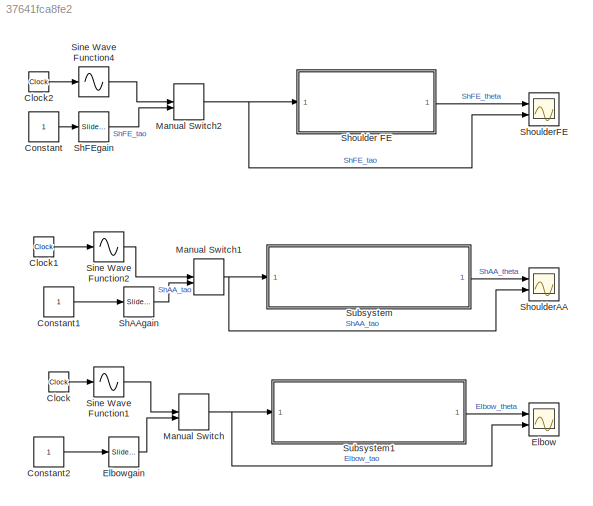
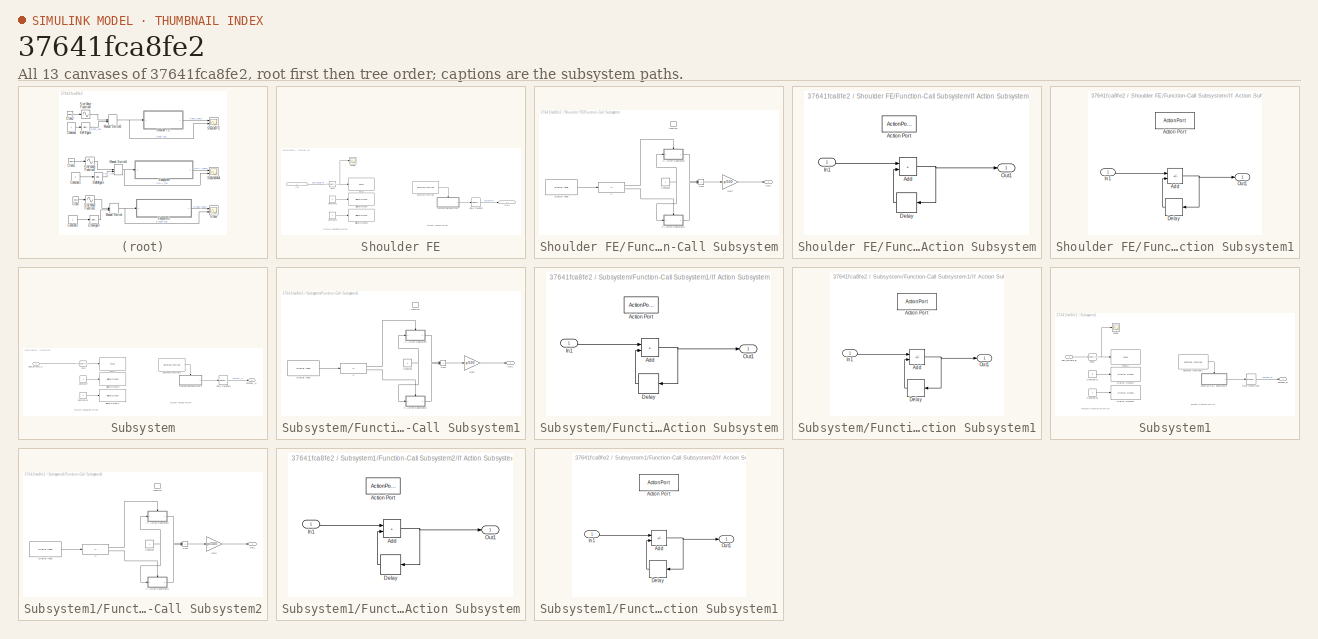
[diagram: thumbnail index - all 13 canvases of the model, root first then tree order]
MODEL slx_37641fca8fe2
KIND model
CONFIG AbsTol = auto
CONFIG EnableMultiTasking = off
CONFIG FixedStep = auto
CONFIG MaxStep = auto
CONFIG MinStep = auto
CONFIG RelTol = 1e-3
CONFIG SampleTimeConstraint = Unconstrained
CONFIG Solver = FixedStepAuto
CONFIG SolverName = FixedStepAuto
CONFIG StartTime = 0.0
CONFIG StopTime = inf
BLOCK [Clock] Clock
BLOCK [Clock] Clock1
BLOCK [Clock] Clock2
BLOCK [Constant] Constant
BLOCK [Constant] Constant1
BLOCK [Constant] Constant2
BLOCK [Scope] Elbow
  Floating = off
  NumInputPorts = 2
  Ports = [2]
  ScopeSpecificationString = Simulink.scopes.TimeScopeBlockCfg('CurrentConfiguration', extmgr.ConfigurationSet(extmgr.Configuration('Core','General UI',true),extmgr.Configuration('Core','Source UI',true),extmgr.Configuration('Sources','WiredSimulink',true,'DataLogging',true,'DataLoggingVariableName','Elbow'),extmgr.Configuration('Visuals','Time Domain',true,'SerializedDisplays',{struct('MinYLimReal','1.38466','MaxYLimReal','1...<+2009ch>
BLOCK [Reference] Elbowgain  REF=simulink/Math
Operations/Slider
Gain
  Ports = [1, 1]
  SourceBlock = simulink/Math\nOperations/Slider\nGain
  SourceProductBaseCode = SL
  SourceType = Slider Gain
BLOCK [ManualSwitch] Manual Switch
BLOCK [ManualSwitch] Manual Switch1
BLOCK [ManualSwitch] Manual Switch2
BLOCK [Reference] ShAAgain  REF=simulink/Math
Operations/Slider
Gain
  Ports = [1, 1]
  SourceBlock = simulink/Math\nOperations/Slider\nGain
  SourceProductBaseCode = SL
  SourceType = Slider Gain
BLOCK [Reference] ShFEgain  REF=simulink/Math
Operations/Slider
Gain
  Ports = [1, 1]
  SourceBlock = simulink/Math\nOperations/Slider\nGain
  SourceProductBaseCode = SL
  SourceType = Slider Gain
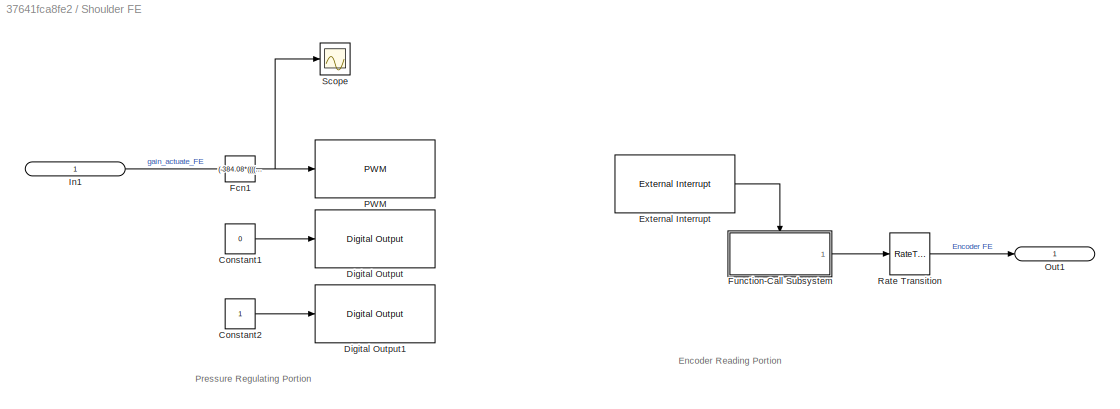
BLOCK [SubSystem] Shoulder FE
  Ports = [1, 1]
  RequestExecContextInheritance = off
BLOCK [Constant] Shoulder FE/Constant1
  SampleTime = -1
  Value = 0
BLOCK [Constant] Shoulder FE/Constant2
  SampleTime = -1
BLOCK [Reference] Shoulder FE/Digital Output  REF=arduinolib/Digital Output
  Ports = [1]
  SourceBlock = arduinolib/Digital Output
  SourceProductBaseCode = ARDUINO
  SourceType = Arduino Digital Output
BLOCK [Reference] Shoulder FE/Digital Output1  REF=arduinolib/Digital Output
  Ports = [1]
  SourceBlock = arduinolib/Digital Output
  SourceProductBaseCode = ARDUINO
  SourceType = Arduino Digital Output
BLOCK [Reference] Shoulder FE/External Interrupt  REF=arduinolib/External Interrupt
  Ports = [0, 1]
  SourceBlock = arduinolib/External Interrupt
  SourceProductBaseCode = ARDUINO
  SourceType = Arduino Interrupt Block
BLOCK [Fcn] Shoulder FE/Fcn1
  Expr = (-384.08*((((u(1)*14.5038))/90))^4 + 789.52*((((u(1)*14.5038))/90))^3 - 618.81*((((u(1)*14.5038))/90))^2 + 468.18*((((u(1)*14.5038))/90)))
BLOCK [SubSystem] Shoulder FE/Function-Call Subsystem
  Ports = [0, 1, 0, 1]
  RequestExecContextInheritance = off
  TreatAsAtomicUnit = on
BLOCK [Constant] Shoulder FE/Function-Call Subsystem/Constant
BLOCK [Reference] Shoulder FE/Function-Call Subsystem/Digital Input  REF=arduinolib/Digital Input
  Ports = [0, 1]
  SourceBlock = arduinolib/Digital Input
  SourceProductBaseCode = ARDUINO
  SourceType = Arduino Digital Input
BLOCK [Gain] Shoulder FE/Function-Call Subsystem/Gain
  Gain = p/500
BLOCK [If] Shoulder FE/Function-Call Subsystem/If
  ElseIfExpressions = u1 == 1
  IfExpression = u1 == 0
  Ports = [1, 2]
  ShowElse = off
BLOCK [SubSystem] Shoulder FE/Function-Call Subsystem/If Action Subsystem
  Ports = [1, 1, 0, 0, 0, 0, 0, 1]
  RequestExecContextInheritance = off
  TreatAsAtomicUnit = on
BLOCK [ActionPort] Shoulder FE/Function-Call Subsystem/If Action Subsystem/Action Port
BLOCK [Sum] Shoulder FE/Function-Call Subsystem/If Action Subsystem/Add
  IconShape = rectangular
  Ports = [2, 1]
BLOCK [Delay] Shoulder FE/Function-Call Subsystem/If Action Subsystem/Delay
  DelayLength = 1
  InputPortMap = u0
  Ports = [1, 1]
BLOCK [Inport] Shoulder FE/Function-Call Subsystem/If Action Subsystem/In1
BLOCK [Outport] Shoulder FE/Function-Call Subsystem/If Action Subsystem/Out1
BLOCK [SubSystem] Shoulder FE/Function-Call Subsystem/If Action Subsystem1
  Ports = [1, 1, 0, 0, 0, 0, 0, 1]
  RequestExecContextInheritance = off
  TreatAsAtomicUnit = on
BLOCK [ActionPort] Shoulder FE/Function-Call Subsystem/If Action Subsystem1/Action Port
BLOCK [Sum] Shoulder FE/Function-Call Subsystem/If Action Subsystem1/Add
  IconShape = rectangular
  Inputs = -+
  Ports = [2, 1]
BLOCK [Delay] Shoulder FE/Function-Call Subsystem/If Action Subsystem1/Delay
  DelayLength = 1
  InputPortMap = u0
  Ports = [1, 1]
BLOCK [Inport] Shoulder FE/Function-Call Subsystem/If Action Subsystem1/In1
BLOCK [Outport] Shoulder FE/Function-Call Subsystem/If Action Subsystem1/Out1
BLOCK [Outport] Shoulder FE/Function-Call Subsystem/Out1
BLOCK [Sum] Shoulder FE/Function-Call Subsystem/Sum
  IconShape = rectangular
  Ports = [2, 1]
BLOCK [TriggerPort] Shoulder FE/Function-Call Subsystem/function
  Ports = []
  StatesWhenEnabling = held
  TriggerType = function-call
  VariantControl = Variant
BLOCK [Inport] Shoulder FE/In1
  IconDisplay = Signal name
BLOCK [Outport] Shoulder FE/Out1
  IconDisplay = Signal name
BLOCK [Reference] Shoulder FE/PWM  REF=arduinolib/PWM
  Ports = [1]
  SourceBlock = arduinolib/PWM
  SourceProductBaseCode = ARDUINO
  SourceType = Arduino PWM
BLOCK [RateTransition] Shoulder FE/Rate Transition
  Deterministic = off
  OutPortSampleTimeOpt = Inherit
BLOCK [Scope] Shoulder FE/Scope
  Floating = off
  NumInputPorts = 1
  Ports = [1]
  ScopeSpecificationString = Simulink.scopes.TimeScopeBlockCfg('CurrentConfiguration', extmgr.ConfigurationSet(extmgr.Configuration('Core','General UI',true),extmgr.Configuration('Core','Source UI',true),extmgr.Configuration('Sources','WiredSimulink',true,'DataLoggingVariableName','ScopeData1'),extmgr.Configuration('Visuals','Time Domain',true,'SerializedDisplays',{struct('MinYLimReal','-1.00000','MaxYLimReal','1.00000','YLab...<+1392ch>
BLOCK [Scope] ShoulderAA
  Floating = off
  NumInputPorts = 2
  Ports = [2]
  ScopeSpecificationString = Simulink.scopes.TimeScopeBlockCfg('CurrentConfiguration', extmgr.ConfigurationSet(extmgr.Configuration('Core','General UI',true),extmgr.Configuration('Core','Source UI',true),extmgr.Configuration('Sources','WiredSimulink',true,'DataLogging',true,'DataLoggingVariableName','ShAA'),extmgr.Configuration('Visuals','Time Domain',true,'SerializedDisplays',{struct('MinYLimReal','-0.02885','MaxYLimReal','-...<+2013ch>
BLOCK [Scope] ShoulderFE
  Floating = off
  NumInputPorts = 2
  Ports = [2]
  ScopeSpecificationString = Simulink.scopes.TimeScopeBlockCfg('CurrentConfiguration', extmgr.ConfigurationSet(extmgr.Configuration('Core','General UI',true),extmgr.Configuration('Core','Source UI',true),extmgr.Configuration('Sources','WiredSimulink',true,'DataLogging',true,'DataLoggingVariableName','ShFE'),extmgr.Configuration('Visuals','Time Domain',true,'SerializedDisplays',{struct('MinYLimReal','1.02573','MaxYLimReal','1....<+2010ch>
BLOCK [Sin] Sine Wave Function1
  Amplitude = 2.3
  Bias = 2.30
  Frequency = 1/50
  Ports = [1, 1]
  SampleTime = 0
  TimeSource = Use external signal
BLOCK [Sin] Sine Wave Function2
  Amplitude = 3
  Bias = 3
  Frequency = 1/50
  Phase = -pi/3
  Ports = [1, 1]
  SampleTime = 0
  TimeSource = Use external signal
BLOCK [Sin] Sine Wave Function4
  Amplitude = 3
  Bias = 3
  Frequency = 1/50
  Phase = pi/6
  Ports = [1, 1]
  SampleTime = 0
  TimeSource = Use external signal
BLOCK [SubSystem] Subsystem
  Ports = [1, 1]
  RequestExecContextInheritance = off
BLOCK [Constant] Subsystem/Constant10
  SampleTime = -1
BLOCK [Constant] Subsystem/Constant7
  SampleTime = -1
  Value = 0
BLOCK [Reference] Subsystem/Digital Output2  REF=arduinolib/Digital Output
  Ports = [1]
  SourceBlock = arduinolib/Digital Output
  SourceProductBaseCode = ARDUINO
  SourceType = Arduino Digital Output
BLOCK [Reference] Subsystem/Digital Output3  REF=arduinolib/Digital Output
  Ports = [1]
  SourceBlock = arduinolib/Digital Output
  SourceProductBaseCode = ARDUINO
  SourceType = Arduino Digital Output
BLOCK [Outport] Subsystem/Encoder_AA
BLOCK [Reference] Subsystem/External Interrupt1  REF=arduinolib/External Interrupt
  Ports = [0, 1]
  SourceBlock = arduinolib/External Interrupt
  SourceProductBaseCode = ARDUINO
  SourceType = Arduino Interrupt Block
BLOCK [Fcn] Subsystem/Fcn2
  Expr = (-384.08*((((u(1)*14.5038))/90))^4 + 789.52*((((u(1)*14.5038))/90))^3 - 618.81*((((u(1)*14.5038))/90))^2 + 468.18*((((u(1)*14.5038))/90)))
BLOCK [SubSystem] Subsystem/Function-Call Subsystem1
  Ports = [0, 1, 0, 1]
  RequestExecContextInheritance = off
  TreatAsAtomicUnit = on
BLOCK [Constant] Subsystem/Function-Call Subsystem1/Constant
BLOCK [Reference] Subsystem/Function-Call Subsystem1/Digital Input  REF=arduinolib/Digital Input
  Ports = [0, 1]
  SourceBlock = arduinolib/Digital Input
  SourceProductBaseCode = ARDUINO
  SourceType = Arduino Digital Input
BLOCK [Gain] Subsystem/Function-Call Subsystem1/Gain
  Gain = p/500
BLOCK [If] Subsystem/Function-Call Subsystem1/If
  ElseIfExpressions = u1 == 1
  IfExpression = u1 == 0
  Ports = [1, 2]
  ShowElse = off
BLOCK [SubSystem] Subsystem/Function-Call Subsystem1/If Action Subsystem
  Ports = [1, 1, 0, 0, 0, 0, 0, 1]
  RequestExecContextInheritance = off
  TreatAsAtomicUnit = on
BLOCK [ActionPort] Subsystem/Function-Call Subsystem1/If Action Subsystem/Action Port
BLOCK [Sum] Subsystem/Function-Call Subsystem1/If Action Subsystem/Add
  IconShape = rectangular
  Ports = [2, 1]
BLOCK [Delay] Subsystem/Function-Call Subsystem1/If Action Subsystem/Delay
  DelayLength = 1
  InputPortMap = u0
  Ports = [1, 1]
BLOCK [Inport] Subsystem/Function-Call Subsystem1/If Action Subsystem/In1
BLOCK [Outport] Subsystem/Function-Call Subsystem1/If Action Subsystem/Out1
BLOCK [SubSystem] Subsystem/Function-Call Subsystem1/If Action Subsystem1
  Ports = [1, 1, 0, 0, 0, 0, 0, 1]
  RequestExecContextInheritance = off
  TreatAsAtomicUnit = on
BLOCK [ActionPort] Subsystem/Function-Call Subsystem1/If Action Subsystem1/Action Port
BLOCK [Sum] Subsystem/Function-Call Subsystem1/If Action Subsystem1/Add
  IconShape = rectangular
  Inputs = -+
  Ports = [2, 1]
BLOCK [Delay] Subsystem/Function-Call Subsystem1/If Action Subsystem1/Delay
  DelayLength = 1
  InputPortMap = u0
  Ports = [1, 1]
BLOCK [Inport] Subsystem/Function-Call Subsystem1/If Action Subsystem1/In1
BLOCK [Outport] Subsystem/Function-Call Subsystem1/If Action Subsystem1/Out1
BLOCK [Outport] Subsystem/Function-Call Subsystem1/Out1
BLOCK [Sum] Subsystem/Function-Call Subsystem1/Sum
  IconShape = rectangular
  Ports = [2, 1]
BLOCK [TriggerPort] Subsystem/Function-Call Subsystem1/function
  Ports = []
  StatesWhenEnabling = held
  TriggerType = function-call
  VariantControl = Variant
BLOCK [Reference] Subsystem/PWM1  REF=arduinolib/PWM
  Ports = [1]
  SourceBlock = arduinolib/PWM
  SourceProductBaseCode = ARDUINO
  SourceType = Arduino PWM
BLOCK [RateTransition] Subsystem/Rate Transition1
  Deterministic = off
  OutPortSampleTimeOpt = Inherit
BLOCK [Inport] Subsystem/gain_actuate_AA
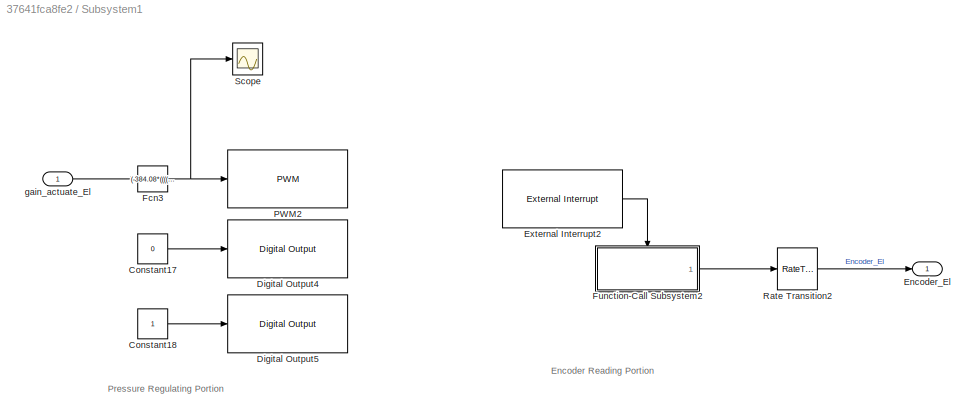
BLOCK [SubSystem] Subsystem1
  Ports = [1, 1]
  RequestExecContextInheritance = off
BLOCK [Constant] Subsystem1/Constant17
  SampleTime = -1
  Value = 0
BLOCK [Constant] Subsystem1/Constant18
  SampleTime = -1
BLOCK [Reference] Subsystem1/Digital Output4  REF=arduinolib/Digital Output
  Ports = [1]
  SourceBlock = arduinolib/Digital Output
  SourceProductBaseCode = ARDUINO
  SourceType = Arduino Digital Output
BLOCK [Reference] Subsystem1/Digital Output5  REF=arduinolib/Digital Output
  Ports = [1]
  SourceBlock = arduinolib/Digital Output
  SourceProductBaseCode = ARDUINO
  SourceType = Arduino Digital Output
BLOCK [Outport] Subsystem1/Encoder_El
BLOCK [Reference] Subsystem1/External Interrupt2  REF=arduinolib/External Interrupt
  Ports = [0, 1]
  SourceBlock = arduinolib/External Interrupt
  SourceProductBaseCode = ARDUINO
  SourceType = Arduino Interrupt Block
BLOCK [Fcn] Subsystem1/Fcn3
  Expr = (-384.08*((((u(1)*14.5038))/90))^4 + 789.52*((((u(1)*14.5038))/90))^3 - 618.81*((((u(1)*14.5038))/90))^2 + 468.18*((((u(1)*14.5038))/90)))
BLOCK [SubSystem] Subsystem1/Function-Call Subsystem2
  Ports = [0, 1, 0, 1]
  RequestExecContextInheritance = off
  TreatAsAtomicUnit = on
BLOCK [Constant] Subsystem1/Function-Call Subsystem2/Constant
BLOCK [Reference] Subsystem1/Function-Call Subsystem2/Digital Input  REF=arduinolib/Digital Input
  Ports = [0, 1]
  SourceBlock = arduinolib/Digital Input
  SourceProductBaseCode = ARDUINO
  SourceType = Arduino Digital Input
BLOCK [Gain] Subsystem1/Function-Call Subsystem2/Gain
  Gain = pi/500
BLOCK [If] Subsystem1/Function-Call Subsystem2/If
  ElseIfExpressions = u1 == 1
  IfExpression = u1 == 0
  Ports = [1, 2]
  ShowElse = off
BLOCK [SubSystem] Subsystem1/Function-Call Subsystem2/If Action Subsystem
  Ports = [1, 1, 0, 0, 0, 0, 0, 1]
  RequestExecContextInheritance = off
  TreatAsAtomicUnit = on
BLOCK [ActionPort] Subsystem1/Function-Call Subsystem2/If Action Subsystem/Action Port
BLOCK [Sum] Subsystem1/Function-Call Subsystem2/If Action Subsystem/Add
  IconShape = rectangular
  Ports = [2, 1]
BLOCK [Delay] Subsystem1/Function-Call Subsystem2/If Action Subsystem/Delay
  DelayLength = 1
  InputPortMap = u0
  Ports = [1, 1]
BLOCK [Inport] Subsystem1/Function-Call Subsystem2/If Action Subsystem/In1
BLOCK [Outport] Subsystem1/Function-Call Subsystem2/If Action Subsystem/Out1
BLOCK [SubSystem] Subsystem1/Function-Call Subsystem2/If Action Subsystem1
  Ports = [1, 1, 0, 0, 0, 0, 0, 1]
  RequestExecContextInheritance = off
  TreatAsAtomicUnit = on
BLOCK [ActionPort] Subsystem1/Function-Call Subsystem2/If Action Subsystem1/Action Port
BLOCK [Sum] Subsystem1/Function-Call Subsystem2/If Action Subsystem1/Add
  IconShape = rectangular
  Inputs = -+
  Ports = [2, 1]
BLOCK [Delay] Subsystem1/Function-Call Subsystem2/If Action Subsystem1/Delay
  DelayLength = 1
  InputPortMap = u0
  Ports = [1, 1]
BLOCK [Inport] Subsystem1/Function-Call Subsystem2/If Action Subsystem1/In1
BLOCK [Outport] Subsystem1/Function-Call Subsystem2/If Action Subsystem1/Out1
BLOCK [Outport] Subsystem1/Function-Call Subsystem2/Out1
BLOCK [Sum] Subsystem1/Function-Call Subsystem2/Sum
  IconShape = rectangular
  Ports = [2, 1]
BLOCK [TriggerPort] Subsystem1/Function-Call Subsystem2/function
  Ports = []
  StatesWhenEnabling = held
  TriggerType = function-call
  VariantControl = Variant
BLOCK [Reference] Subsystem1/PWM2  REF=arduinolib/PWM
  Ports = [1]
  SourceBlock = arduinolib/PWM
  SourceProductBaseCode = ARDUINO
  SourceType = Arduino PWM
BLOCK [RateTransition] Subsystem1/Rate Transition2
  Deterministic = off
  OutPortSampleTimeOpt = Inherit
BLOCK [Scope] Subsystem1/Scope
  Floating = off
  NumInputPorts = 1
  Ports = [1]
  ScopeSpecificationString = Simulink.scopes.TimeScopeBlockCfg('CurrentConfiguration', extmgr.ConfigurationSet(extmgr.Configuration('Core','General UI',true),extmgr.Configuration('Core','Source UI',true),extmgr.Configuration('Sources','WiredSimulink',true,'DataLoggingVariableName','ScopeData2'),extmgr.Configuration('Visuals','Time Domain',true,'SerializedDisplays',{struct('MinYLimReal','-3.63629','MaxYLimReal','32.72665','YLa...<+1392ch>
BLOCK [Inport] Subsystem1/gain_actuate_El
ANNOTATION Shoulder FE: Encoder Reading Portion
ANNOTATION Shoulder FE: Pressure Regulating Portion
ANNOTATION Subsystem: Encoder Reading Portion
ANNOTATION Subsystem: Pressure Regulating Portion
ANNOTATION Subsystem1: Encoder Reading Portion
ANNOTATION Subsystem1: Pressure Regulating Portion
LINE Clock1:1 -> Sine Wave Function2:1
LINE Clock2:1 -> Sine Wave Function4:1
LINE Clock:1 -> Sine Wave Function1:1
LINE Constant1:1 -> ShAAgain:1
LINE Constant2:1 -> Elbowgain:1
LINE Constant:1 -> ShFEgain:1
LINE Elbowgain:1 -> Manual Switch:2
NET Manual Switch1:1 -> ShoulderAA:2, Subsystem:1
NET Manual Switch2:1 -> Shoulder FE:1, ShoulderFE:2
NET Manual Switch:1 -> Elbow:2, Subsystem1:1
LINE ShAAgain:1 -> Manual Switch1:2
LINE ShFEgain:1 -> Manual Switch2:2
LINE Shoulder FE/Constant1:1 -> Shoulder FE/Digital Output:1
LINE Shoulder FE/Constant2:1 -> Shoulder FE/Digital Output1:1
LINE Shoulder FE/External Interrupt:1 -> Shoulder FE/Function-Call Subsystem:trigger
NET Shoulder FE/Fcn1:1 -> Shoulder FE/PWM:1, Shoulder FE/Scope:1
NET Shoulder FE/Function-Call Subsystem/Constant:1 -> Shoulder FE/Function-Call Subsystem/If Action Subsystem1:1, Shoulder FE/Function-Call Subsystem/If Action Subsystem:1
LINE Shoulder FE/Function-Call Subsystem/Digital Input:1 -> Shoulder FE/Function-Call Subsystem/If:1
LINE Shoulder FE/Function-Call Subsystem/Gain:1 -> Shoulder FE/Function-Call Subsystem/Out1:1
NET Shoulder FE/Function-Call Subsystem/If Action Subsystem/Add:1 -> Shoulder FE/Function-Call Subsystem/If Action Subsystem/Delay:1, Shoulder FE/Function-Call Subsystem/If Action Subsystem/Out1:1
LINE Shoulder FE/Function-Call Subsystem/If Action Subsystem/Delay:1 -> Shoulder FE/Function-Call Subsystem/If Action Subsystem/Add:2
LINE Shoulder FE/Function-Call Subsystem/If Action Subsystem/In1:1 -> Shoulder FE/Function-Call Subsystem/If Action Subsystem/Add:1
NET Shoulder FE/Function-Call Subsystem/If Action Subsystem1/Add:1 -> Shoulder FE/Function-Call Subsystem/If Action Subsystem1/Delay:1, Shoulder FE/Function-Call Subsystem/If Action Subsystem1/Out1:1
LINE Shoulder FE/Function-Call Subsystem/If Action Subsystem1/Delay:1 -> Shoulder FE/Function-Call Subsystem/If Action Subsystem1/Add:2
LINE Shoulder FE/Function-Call Subsystem/If Action Subsystem1/In1:1 -> Shoulder FE/Function-Call Subsystem/If Action Subsystem1/Add:1
LINE Shoulder FE/Function-Call Subsystem/If Action Subsystem1:1 -> Shoulder FE/Function-Call Subsystem/Sum:2
LINE Shoulder FE/Function-Call Subsystem/If Action Subsystem:1 -> Shoulder FE/Function-Call Subsystem/Sum:1
LINE Shoulder FE/Function-Call Subsystem/If:1 -> Shoulder FE/Function-Call Subsystem/If Action Subsystem:ifaction
LINE Shoulder FE/Function-Call Subsystem/If:2 -> Shoulder FE/Function-Call Subsystem/If Action Subsystem1:ifaction
LINE Shoulder FE/Function-Call Subsystem/Sum:1 -> Shoulder FE/Function-Call Subsystem/Gain:1
LINE Shoulder FE/Function-Call Subsystem:1 -> Shoulder FE/Rate Transition:1
LINE Shoulder FE/In1:1 -> Shoulder FE/Fcn1:1
LINE Shoulder FE/Rate Transition:1 -> Shoulder FE/Out1:1
LINE Shoulder FE:1 -> ShoulderFE:1
LINE Sine Wave Function1:1 -> Manual Switch:1
LINE Sine Wave Function2:1 -> Manual Switch1:1
LINE Sine Wave Function4:1 -> Manual Switch2:1
LINE Subsystem/Constant10:1 -> Subsystem/Digital Output3:1
LINE Subsystem/Constant7:1 -> Subsystem/Digital Output2:1
LINE Subsystem/External Interrupt1:1 -> Subsystem/Function-Call Subsystem1:trigger
LINE Subsystem/Fcn2:1 -> Subsystem/PWM1:1
NET Subsystem/Function-Call Subsystem1/Constant:1 -> Subsystem/Function-Call Subsystem1/If Action Subsystem1:1, Subsystem/Function-Call Subsystem1/If Action Subsystem:1
LINE Subsystem/Function-Call Subsystem1/Digital Input:1 -> Subsystem/Function-Call Subsystem1/If:1
LINE Subsystem/Function-Call Subsystem1/Gain:1 -> Subsystem/Function-Call Subsystem1/Out1:1
NET Subsystem/Function-Call Subsystem1/If Action Subsystem/Add:1 -> Subsystem/Function-Call Subsystem1/If Action Subsystem/Delay:1, Subsystem/Function-Call Subsystem1/If Action Subsystem/Out1:1
LINE Subsystem/Function-Call Subsystem1/If Action Subsystem/Delay:1 -> Subsystem/Function-Call Subsystem1/If Action Subsystem/Add:2
LINE Subsystem/Function-Call Subsystem1/If Action Subsystem/In1:1 -> Subsystem/Function-Call Subsystem1/If Action Subsystem/Add:1
NET Subsystem/Function-Call Subsystem1/If Action Subsystem1/Add:1 -> Subsystem/Function-Call Subsystem1/If Action Subsystem1/Delay:1, Subsystem/Function-Call Subsystem1/If Action Subsystem1/Out1:1
LINE Subsystem/Function-Call Subsystem1/If Action Subsystem1/Delay:1 -> Subsystem/Function-Call Subsystem1/If Action Subsystem1/Add:2
LINE Subsystem/Function-Call Subsystem1/If Action Subsystem1/In1:1 -> Subsystem/Function-Call Subsystem1/If Action Subsystem1/Add:1
LINE Subsystem/Function-Call Subsystem1/If Action Subsystem1:1 -> Subsystem/Function-Call Subsystem1/Sum:2
LINE Subsystem/Function-Call Subsystem1/If Action Subsystem:1 -> Subsystem/Function-Call Subsystem1/Sum:1
LINE Subsystem/Function-Call Subsystem1/If:1 -> Subsystem/Function-Call Subsystem1/If Action Subsystem:ifaction
LINE Subsystem/Function-Call Subsystem1/If:2 -> Subsystem/Function-Call Subsystem1/If Action Subsystem1:ifaction
LINE Subsystem/Function-Call Subsystem1/Sum:1 -> Subsystem/Function-Call Subsystem1/Gain:1
LINE Subsystem/Function-Call Subsystem1:1 -> Subsystem/Rate Transition1:1
LINE Subsystem/Rate Transition1:1 -> Subsystem/Encoder_AA:1
LINE Subsystem/gain_actuate_AA:1 -> Subsystem/Fcn2:1
LINE Subsystem1/Constant17:1 -> Subsystem1/Digital Output4:1
LINE Subsystem1/Constant18:1 -> Subsystem1/Digital Output5:1
LINE Subsystem1/External Interrupt2:1 -> Subsystem1/Function-Call Subsystem2:trigger
NET Subsystem1/Fcn3:1 -> Subsystem1/PWM2:1, Subsystem1/Scope:1
NET Subsystem1/Function-Call Subsystem2/Constant:1 -> Subsystem1/Function-Call Subsystem2/If Action Subsystem1:1, Subsystem1/Function-Call Subsystem2/If Action Subsystem:1
LINE Subsystem1/Function-Call Subsystem2/Digital Input:1 -> Subsystem1/Function-Call Subsystem2/If:1
LINE Subsystem1/Function-Call Subsystem2/Gain:1 -> Subsystem1/Function-Call Subsystem2/Out1:1
NET Subsystem1/Function-Call Subsystem2/If Action Subsystem/Add:1 -> Subsystem1/Function-Call Subsystem2/If Action Subsystem/Delay:1, Subsystem1/Function-Call Subsystem2/If Action Subsystem/Out1:1
LINE Subsystem1/Function-Call Subsystem2/If Action Subsystem/Delay:1 -> Subsystem1/Function-Call Subsystem2/If Action Subsystem/Add:2
LINE Subsystem1/Function-Call Subsystem2/If Action Subsystem/In1:1 -> Subsystem1/Function-Call Subsystem2/If Action Subsystem/Add:1
NET Subsystem1/Function-Call Subsystem2/If Action Subsystem1/Add:1 -> Subsystem1/Function-Call Subsystem2/If Action Subsystem1/Delay:1, Subsystem1/Function-Call Subsystem2/If Action Subsystem1/Out1:1
LINE Subsystem1/Function-Call Subsystem2/If Action Subsystem1/Delay:1 -> Subsystem1/Function-Call Subsystem2/If Action Subsystem1/Add:2
LINE Subsystem1/Function-Call Subsystem2/If Action Subsystem1/In1:1 -> Subsystem1/Function-Call Subsystem2/If Action Subsystem1/Add:1
LINE Subsystem1/Function-Call Subsystem2/If Action Subsystem1:1 -> Subsystem1/Function-Call Subsystem2/Sum:2
LINE Subsystem1/Function-Call Subsystem2/If Action Subsystem:1 -> Subsystem1/Function-Call Subsystem2/Sum:1
LINE Subsystem1/Function-Call Subsystem2/If:1 -> Subsystem1/Function-Call Subsystem2/If Action Subsystem:ifaction
LINE Subsystem1/Function-Call Subsystem2/If:2 -> Subsystem1/Function-Call Subsystem2/If Action Subsystem1:ifaction
LINE Subsystem1/Function-Call Subsystem2/Sum:1 -> Subsystem1/Function-Call Subsystem2/Gain:1
LINE Subsystem1/Function-Call Subsystem2:1 -> Subsystem1/Rate Transition2:1
LINE Subsystem1/Rate Transition2:1 -> Subsystem1/Encoder_El:1
LINE Subsystem1/gain_actuate_El:1 -> Subsystem1/Fcn3:1
LINE Subsystem1:1 -> Elbow:1
LINE Subsystem:1 -> ShoulderAA:1
note: NET lines group one-source signal fan-out (src -> all destinations, sorted); 1:1 wires keep LINE
